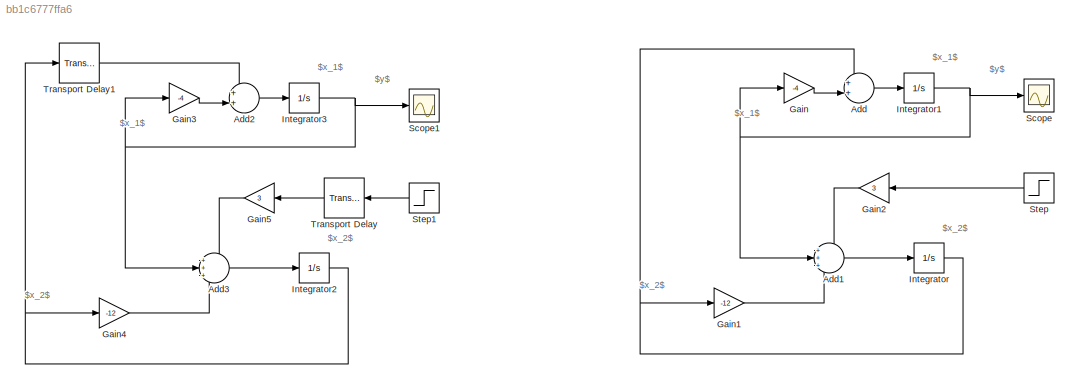
MODEL slx_bb1c6777ffa6
KIND model
CONFIG AbsTol = auto
CONFIG EnableMultiTasking = off
CONFIG FixedStep = auto
CONFIG MaxStep = auto
CONFIG MinStep = auto
CONFIG RelTol = 1e-3
CONFIG SampleTimeConstraint = Unconstrained
CONFIG SolverName = VariableStepAuto
CONFIG StartTime = 0.0
CONFIG StopTime = 10.0
BLOCK [Sum] Add
  Inputs = ++|
BLOCK [Sum] Add1
  Inputs = +++
BLOCK [Sum] Add2
  Inputs = ++|
BLOCK [Sum] Add3
  Inputs = +++
BLOCK [Gain] Gain
  Gain = -4
BLOCK [Gain] Gain1
  Gain = -12
BLOCK [Gain] Gain2
  Gain = 3
  NameLocation = top
BLOCK [Gain] Gain3
  Gain = -4
BLOCK [Gain] Gain4
  Gain = -12
BLOCK [Gain] Gain5
  Gain = 3
  NameLocation = top
BLOCK [Integrator] Integrator
BLOCK [Integrator] Integrator1
BLOCK [Integrator] Integrator2
BLOCK [Integrator] Integrator3
BLOCK [Scope] Scope
  Floating = off
  NumInputPorts = 2
  ScopeSpecificationString = Simulink.scopes.TimeScopeBlockCfg('CurrentConfiguration', extmgr.ConfigurationSet(extmgr.Configuration('Core','General UI',true,'FigureColor',[0.972549019607843 0.972549019607843 0.972549019607843]),extmgr.Configuration('Core','Source UI',true),extmgr.Configuration('Sources','WiredSimulink',true,'SampleTime','0.001'),extmgr.Configuration('Visuals','Time Domain',true,'SerializedDisplays',{struct('M...<+1716ch>
BLOCK [Scope] Scope1
  Floating = off
  NumInputPorts = 2
  ScopeSpecificationString = Simulink.scopes.TimeScopeBlockCfg('CurrentConfiguration', extmgr.ConfigurationSet(extmgr.Configuration('Core','General UI',true,'FigureColor',[0.972549019607843 0.972549019607843 0.972549019607843]),extmgr.Configuration('Core','Source UI',true),extmgr.Configuration('Sources','WiredSimulink',true,'SampleTime','0.001','DataLoggingVariableName','ScopeData1'),extmgr.Configuration('Visuals','Time Domai...<+1743ch>
BLOCK [Step] Step
  NameLocation = top
  SampleTime = 0.001
BLOCK [Step] Step1
  NameLocation = top
  SampleTime = 0.001
BLOCK [TransportDelay] Transport Delay
  DelayTime = 0.2
  NameLocation = top
BLOCK [TransportDelay] Transport Delay1
  DelayTime = 0.4
ANNOTATION (root): $x_1$
ANNOTATION (root): $x_2$
ANNOTATION (root): $y$
LINE Add1:1 -> Integrator:1
LINE Add2:1 -> Integrator3:1
LINE Add3:1 -> Integrator2:1
LINE Add:1 -> Integrator1:1
LINE Gain1:1 -> Add1:3
LINE Gain2:1 -> Add1:1
LINE Gain3:1 -> Add2:2
LINE Gain4:1 -> Add3:3
LINE Gain5:1 -> Add3:1
LINE Gain:1 -> Add:2
NET Integrator1:1 -> Add1:2, Gain:1, Scope:1
NET Integrator2:1 -> Gain4:1, Transport Delay1:1
NET Integrator3:1 -> Add3:2, Gain3:1, Scope1:1
NET Integrator:1 -> Add:1, Gain1:1
LINE Step1:1 -> Transport Delay:1
LINE Step:1 -> Gain2:1
LINE Transport Delay1:1 -> Add2:1
LINE Transport Delay:1 -> Gain5:1
note: NET lines group one-source signal fan-out (src -> all destinations, sorted); 1:1 wires keep LINE
